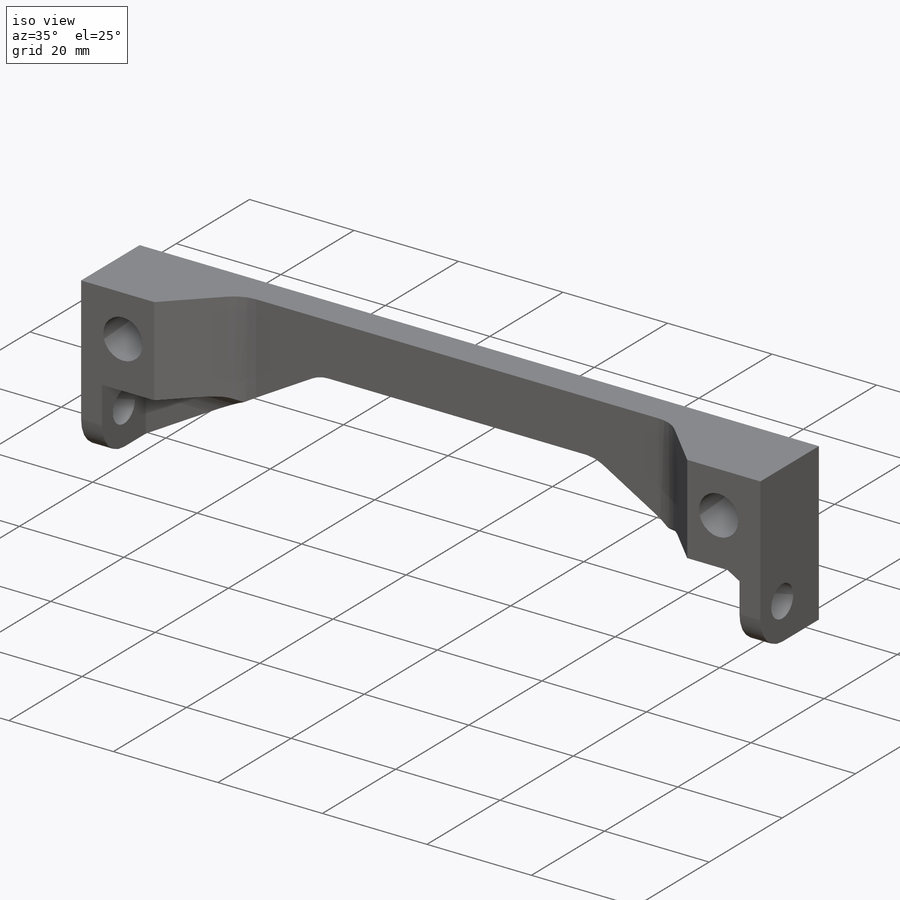
[diagram: iso view]
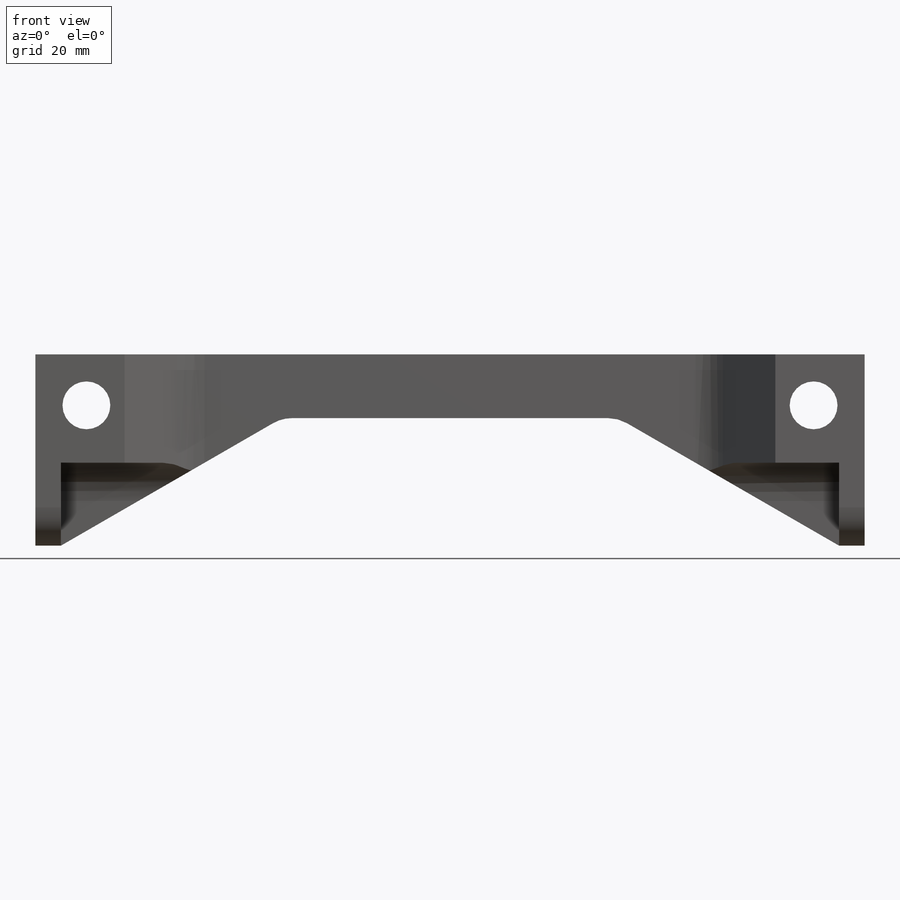
[diagram: front view]
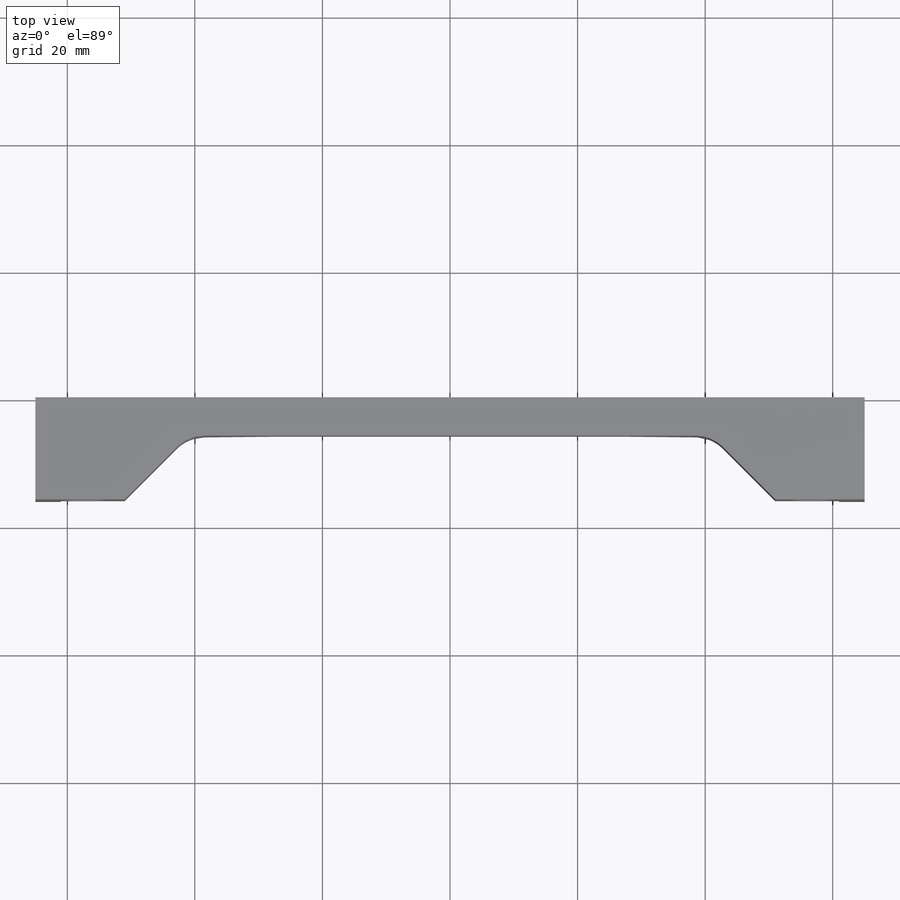
[diagram: top view]
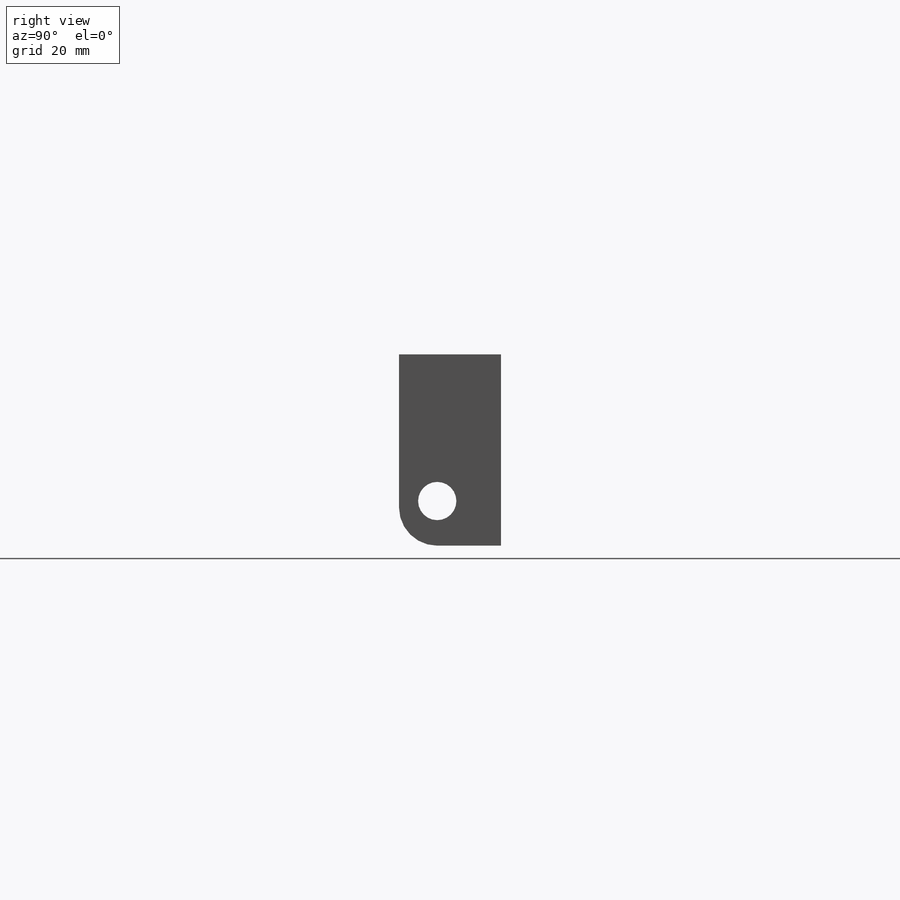
[diagram: right view]
SOLIDWORKS PART (.sldprt)
format: sldprt  version: not decoded by parser v0  size: 219,136 bytes
history: native  units: mm
features: sketch x5, cut_extrude x4, material x1, extrude x1, fillet x1 (+11 scaffold rows collapsed)
feature tree (23):
  scaffold x11  (default folders/planes/origin — collapsed)
  material  "Material <not specified>"
  sketch  "Sketch2"  dims[c1.D6=7.5mm c1.D1=30.0mm c1.D2=130.0mm c1.D3=4.0mm c1.D4=10.0mm c1.D5=~18.827369mm c2.D5=30.0deg c2.D7=8.0mm c2.D8=8.0mm c2.D9=8.0mm c3.D7=8.0mm c3.D10=12.0mm c4.D10=30.0deg]
  extrude  "Boss-Extrude1"  Depth=16mm
  sketch  "Sketch3"  dims[D2=6.0mm D1=7.0mm D3=10.0mm]
  cut_extrude  "Cut-Extrude1"  [1 undecoded]
  sketch  "Sketch4"  dims[c1.D1=14.0mm c1.D2=14.0mm c1.D3=6.0mm c1.D4=~15.333421mm c2.D4=45.0deg]
  cut_extrude  "Cut-Extrude2"  [1 undecoded]
  sketch  "Sketch5"  dims[D1=12.0mm]
  cut_extrude  "Cut-Extrude3"  Depth=30mm
  sketch  "Sketch6"  dims[D1=12.0mm]
  cut_extrude  "Cut-Extrude4"  Depth=30mm
  fillet  "Fillet1"  Radius=6mm
decode coverage: 9 of 11 modeling features carry decoded parameters
note: ~ marks probable driven/reference dimensions
note: 2 parameter values undecoded
note: suppression state not decoded; provenance and decode notes live in map.json
